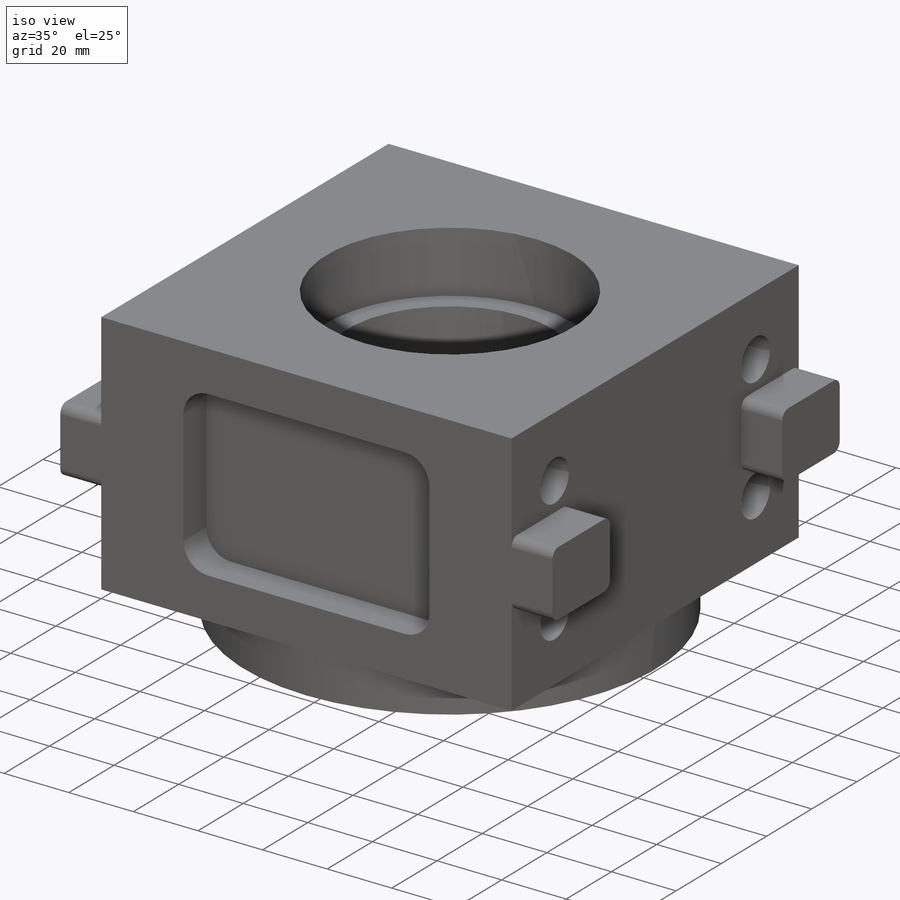
[diagram: iso view]
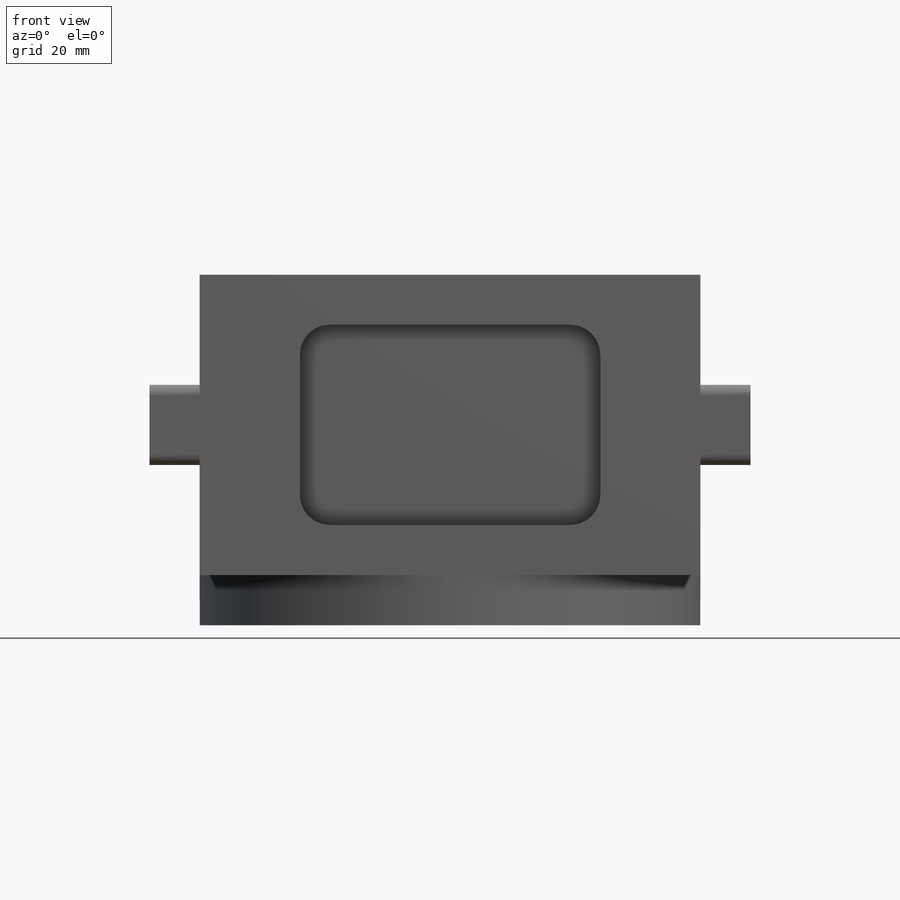
[diagram: front view]
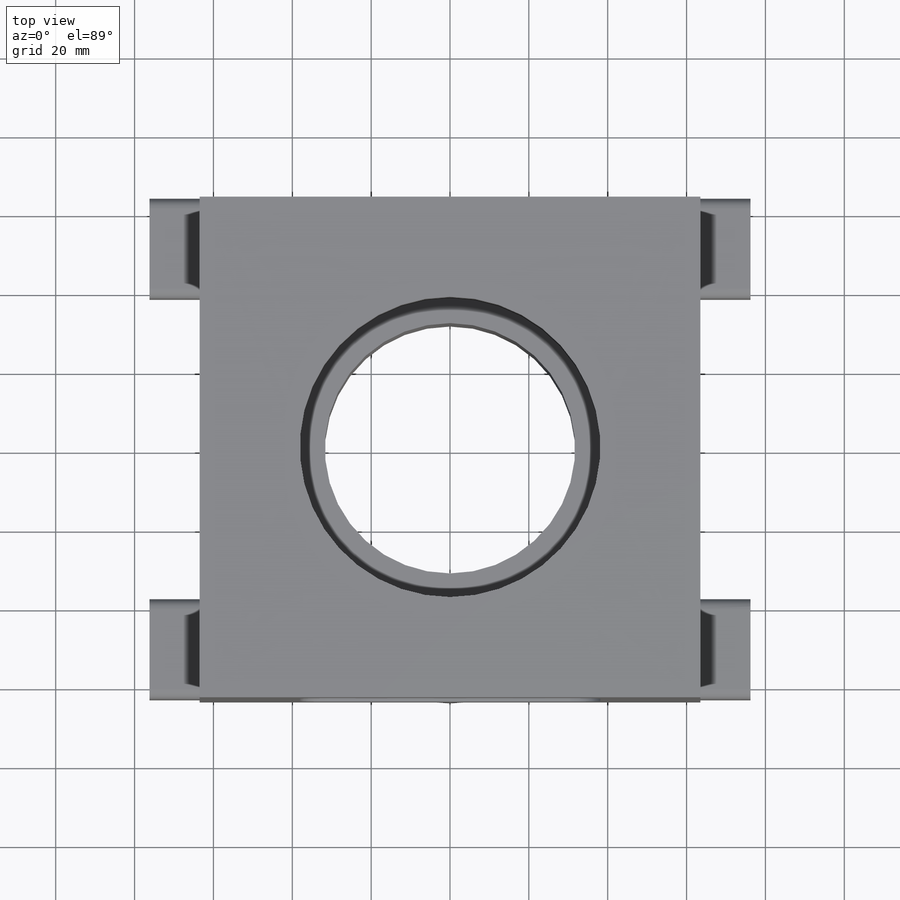
[diagram: top view]
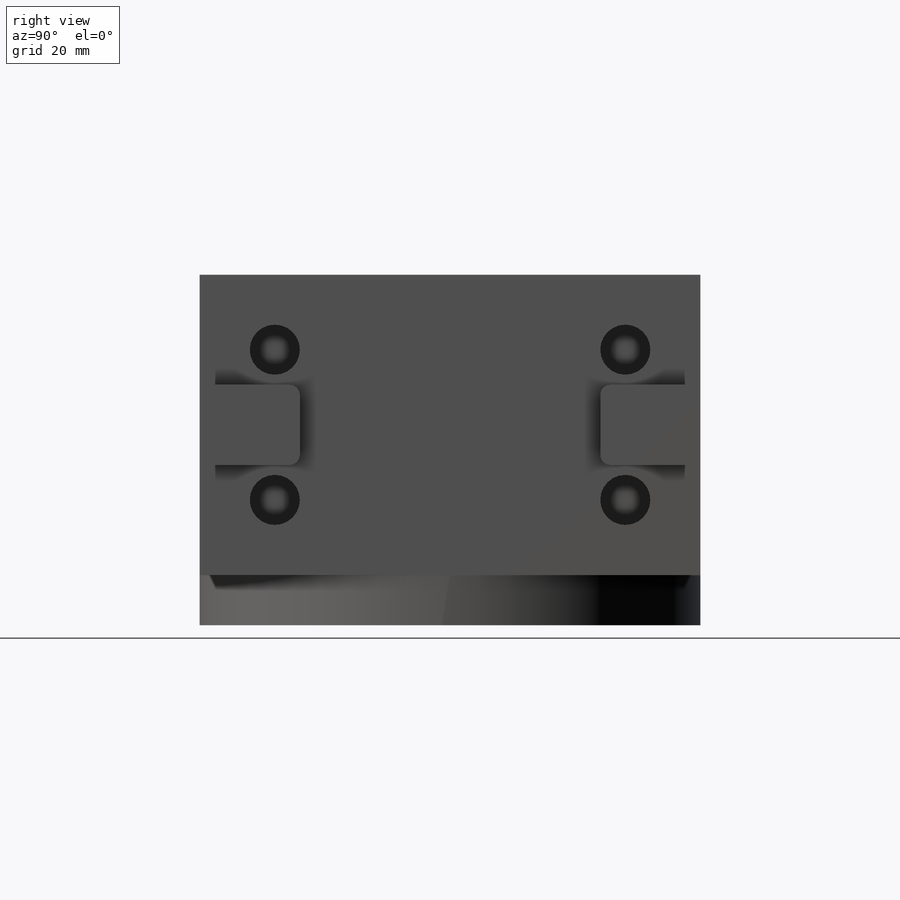
[diagram: right view]
SOLIDWORKS PART (.sldprt)
format: sldprt  version: not decoded by parser v0  size: 355,328 bytes
history: native  units: mm
features: sketch x6, extrude x4, cut_extrude x2, mirror x2, plane x2, fillet x2, material x1 (+13 scaffold rows collapsed)
feature tree (32):
  scaffold x13  (default folders/planes/origin — collapsed)
  material  "6061-T6 (SS)"
  sketch  "Sketch1"  dims[c1.D3=76.2mm c1.D1=~59.697208mm c1.D2=~94.933121mm c2.D1=127.0mm c2.D2=127.0mm]
  extrude  "Boss-Extrude1"  Depth=76.2mm
  sketch  "Sketch2"  dims[c1.D1=12.7mm c1.D2=12.7mm c2.D1=~52.61386mm c2.D2=~94.337314mm c2.D3=19.05mm c2.D4=19.05mm]
  cut_extrude  "Cut-Extrude1"  Depth=25.4mm
  mirror  "Mirror1"
  sketch  "Sketch3"  dims[D1=127.0mm]
  extrude  "Boss-Extrude2"  Depth=12.7mm
  sketch  "Sketch4"  dims[D1=27.94mm D2=27.94mm D3=27.94mm D4=27.94mm D5=12.7mm D6=12.7mm]
  extrude  "Boss-Extrude3"  Depth=25.4mm
  plane  "Plane1"
  fillet  "Fillet1"  Radius=2.54mm
  mirror  "Mirror2"
  sketch  "Sketch5"  dims[D1=12.7mm D2=12.7mm D3=25.4mm D4=25.4mm]
  cut_extrude  "Cut-Extrude3"  Depth=10.16mm
  fillet  "Fillet2"  Radius=7.62mm
  plane  "Plane2"
  sketch  "Sketch6"  dims[c1.D1=~64.730184mm c1.D2=63.5mm c2.D1=6.35mm]
  extrude  "Boss-Extrude4"  Depth=25.4mm
decode coverage: 14 of 16 modeling features carry decoded parameters
note: ~ marks probable driven/reference dimensions
note: suppression state not decoded; provenance and decode notes live in map.json
